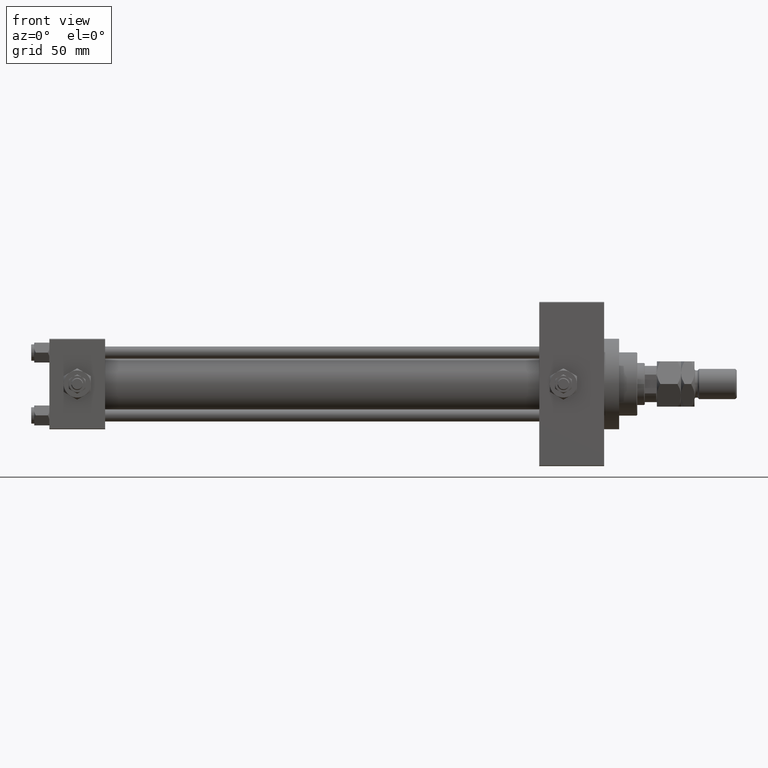
[diagram: clean part render]
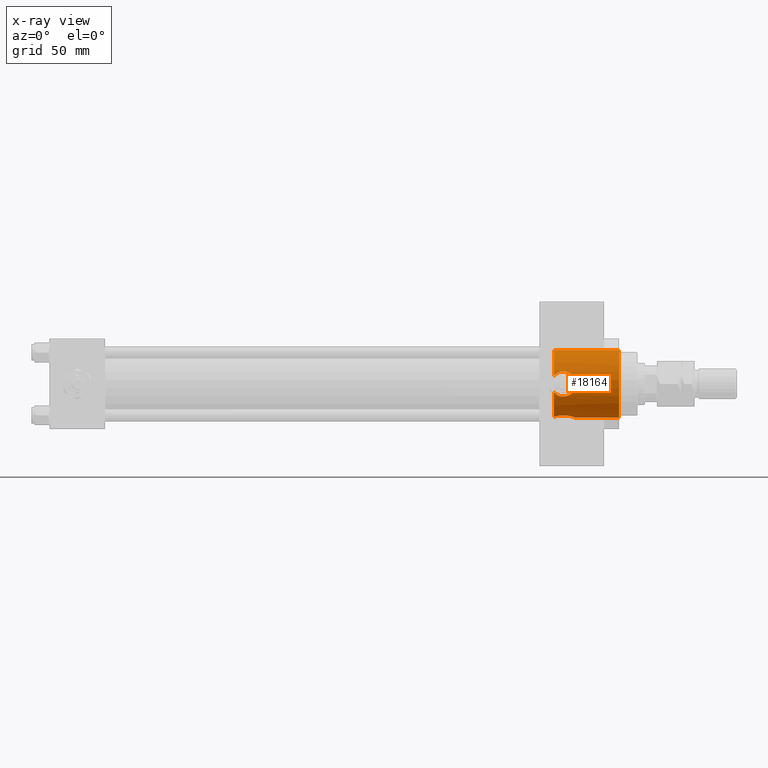
[diagram: x-ray — body ghosted, one internal face saturated and labeled with its STEP entity id]
A machine part, front view, then the same camera in x-ray: the body is ghosted and one INTERNAL B-rep face — a face not visible from any outside direction — is saturated and labeled: STEP entity #18164.
In plain terms, the highlighted cylindrical surface (edge-blend (fillet) strip) has radius 22.5 mm, axis along (1, 0, 0).
Its self-contained STEP definition (entity closure, byte-faithful):
#681 = CARTESIAN_POINT ( 'NONE',  ( 349.0725935047803432, -2.097577831626844080, -22.40566635581345167 ) ) ;
#924 = CARTESIAN_POINT ( 'NONE',  ( 348.8195974207912400, -2.901808889280268922, -22.31576175661178496 ) ) ;
#1320 = ORIENTED_EDGE ( 'NONE', *, *, #31880, .F. ) ;
#2013 = CARTESIAN_POINT ( 'NONE',  ( 341.5471095774288983, -20.90659301079499244, -8.316562903860836187 ) ) ;
#2521 = CARTESIAN_POINT ( 'NONE',  ( 334.7399999999999523, -21.81854028114621968, 5.495570943951130438 ) ) ;
#2958 = CARTESIAN_POINT ( 'NONE',  ( 348.8855645018619498, -22.33915006169611317, 2.698472660097865905 ) ) ;
#3207 = CARTESIAN_POINT ( 'NONE',  ( 349.2744378885959691, -22.47926508187073935, -1.105184406068002057 ) ) ;
#3460 = CARTESIAN_POINT ( 'NONE',  ( 348.4663613352664129, -22.19443338850294367, -3.703568790865940485 ) ) ;
#4526 = CARTESIAN_POINT ( 'NONE',  ( 338.1560306839753025, -7.840697625789160519, -21.09036237300174577 ) ) ;
#4705 = DIRECTION ( 'NONE',  ( 0.000000000000000000, 0.000000000000000000, -1.000000000000000000 ) ) ;
#4776 = ORIENTED_EDGE ( 'NONE', *, *, #39935, .T. ) ;
#5028 = CARTESIAN_POINT ( 'NONE',  ( 337.0116854358693672, -7.325101535721532997, -21.27547271216654678 ) ) ;
#5801 = AXIS2_PLACEMENT_3D ( 'NONE', #32002, #24525, #4705 ) ;
#5856 = CARTESIAN_POINT ( 'NONE',  ( 347.6131820133792303, -21.92059695852138645, 5.094123725193845154 ) ) ;
#6321 = CYLINDRICAL_SURFACE ( 'NONE', #19060, 22.50000000000000355 ) ;
#7004 = ORIENTED_EDGE ( 'NONE', *, *, #7801, .F. ) ;
#7064 = CARTESIAN_POINT ( 'NONE',  ( 347.2760300427460152, -21.81999627700183453, -5.504278278704846095 ) ) ;
#7318 = CARTESIAN_POINT ( 'NONE',  ( 341.2770915216182743, -20.90122245228731401, 8.330000000000024940 ) ) ;
#7407 = CARTESIAN_POINT ( 'NONE',  ( 337.2813383015108002, -21.22781254901980574, 7.459669642192426231 ) ) ;
#7455 = LINE ( 'NONE', #35253, #22378 ) ;
#7527 = CARTESIAN_POINT ( 'NONE',  ( 334.7399999999999523, 2.755455298081545172E-15, 22.50000000000000355 ) ) ;
#7801 = EDGE_CURVE ( 'NONE', #42358, #26843, #46937, .T. ) ;
#7956 = DIRECTION ( 'NONE',  ( 1.000000000000000000, -0.000000000000000000, -0.000000000000000000 ) ) ;
#8133 = CARTESIAN_POINT ( 'NONE',  ( 349.2979863424998257, -0.8432915997223064952, -22.48808859033163188 ) ) ;
#8432 = CARTESIAN_POINT ( 'NONE',  ( 334.7399999999999523, -21.81854028114622324, -5.495570943951128662 ) ) ;
#9011 = CARTESIAN_POINT ( 'NONE',  ( 349.3299999999999841, -1.030804544852296126E-23, -22.50000000000000355 ) ) ;
#9159 = CARTESIAN_POINT ( 'NONE',  ( 349.3300000000000978, -0.4228661663087368572, -22.50000000000001421 ) ) ;
#9733 = CARTESIAN_POINT ( 'NONE',  ( 348.4672601230096234, -22.19473539390111583, 3.701775444982247087 ) ) ;
#9947 = FACE_OUTER_BOUND ( 'NONE', #36939, .T. ) ;
#9985 = CARTESIAN_POINT ( 'NONE',  ( 349.3300812647951261, -22.50003008603270516, -0.5475920828583176192 ) ) ;
#10931 = CARTESIAN_POINT ( 'NONE',  ( 343.1693074062156370, -21.01188926694717551, 8.047222581461237922 ) ) ;
#11186 = CARTESIAN_POINT ( 'NONE',  ( 342.6405019173681126, -20.96042511169567391, 8.180472788441878862 ) ) ;
#11442 = CARTESIAN_POINT ( 'NONE',  ( 377.9999999999999432, 0.000000000000000000, 0.000000000000000000 ) ) ;
#11730 = CIRCLE ( 'NONE', #31445, 22.50000000000000355 ) ;
#12301 = CARTESIAN_POINT ( 'NONE',  ( 338.6423281438608797, -21.02576769369942866, -8.011595525461789435 ) ) ;
#12765 = CARTESIAN_POINT ( 'NONE',  ( 349.1699291769579645, -1.679278209817700374, -22.44115179447787511 ) ) ;
#13254 = CARTESIAN_POINT ( 'NONE',  ( 377.9999999999999432, 2.755455298081545172E-15, 22.50000000000000355 ) ) ;
#13611 = CARTESIAN_POINT ( 'NONE',  ( 348.7930968072332121, -22.30658703498861684, 2.954723655153332906 ) ) ;
#13860 = CARTESIAN_POINT ( 'NONE',  ( 343.6924408181926083, -21.07232387524589257, 7.887613602273576774 ) ) ;
#13895 = EDGE_CURVE ( 'NONE', #19128, #31891, #50781, .T. ) ;
#14270 = DIRECTION ( 'NONE',  ( 1.000000000000000000, 0.000000000000000000, 0.000000000000000000 ) ) ;
#14802 = CARTESIAN_POINT ( 'NONE',  ( 344.7100157079871678, -21.22206990084784906, 7.478228700289371922 ) ) ;
#14888 = CARTESIAN_POINT ( 'NONE',  ( 339.8116114218196344, -20.92703331906125896, 8.266041580867405258 ) ) ;
#15060 = CARTESIAN_POINT ( 'NONE',  ( 348.0690759461941184, -22.06383064093186164, -4.414719317479118388 ) ) ;
#15394 = CARTESIAN_POINT ( 'NONE',  ( 337.0214695962670248, -21.27506732941325396, 7.324357775039843865 ) ) ;
#15678 = CARTESIAN_POINT ( 'NONE',  ( 337.0164830714163031, -21.27597812299412183, -7.321745335051938142 ) ) ;
#15813 = AXIS2_PLACEMENT_3D ( 'NONE', #49520, #14270, #25079 ) ;
#15926 = CARTESIAN_POINT ( 'NONE',  ( 338.0838949812959982, -21.09704273054902046, -7.825085139990043182 ) ) ;
#15977 = B_SPLINE_CURVE_WITH_KNOTS ( 'NONE', 3,
 ( #31558, #9159, #8133, #12765, #681, #924, #47526, #20482, #32310, #43918, #39790, #48039, #24847, #20737, #16382, #40290, #36182, #47277, #16892, #28446, #44166, #24334, #24590, #40033, #4526, #23827, #5028, #20999, #36438, #20225, #35923, #39538 ),
 .UNSPECIFIED., .F., .F.,
 ( 4, 2, 2, 2, 2, 2, 2, 2, 2, 2, 2, 2, 2, 2, 2, 4 ),
 ( 0.02026158208243490286, 0.02152696880141145158, 0.02279235552038800378, 0.02405774223936455250, 0.02532312895834110122, 0.02658851567731764995, 0.02785390239629419867, 0.03038467583424730306, 0.03291544927220040051, 0.03354814263168863497, 0.03418083599117686944, 0.03544622271015333836, 0.03671160942912980729, 0.03797699614810627622, 0.03924238286708274515, 0.04050776958605921407 ),
 .UNSPECIFIED. ) ;
#16382 = CARTESIAN_POINT ( 'NONE',  ( 344.7487363894114765, -7.487015359358492717, -21.22021487626639669 ) ) ;
#16892 = CARTESIAN_POINT ( 'NONE',  ( 341.0645977083230491, -8.332469890991696104, -20.90023832775081658 ) ) ;
#17389 = B_SPLINE_CURVE_WITH_KNOTS ( 'NONE', 3,
 ( #8432, #23621, #24132, #43452, #35972, #15678, #43964, #15926, #12301, #47072, #47326, #28243, #47825, #35224 ),
 .UNSPECIFIED., .F., .F.,
 ( 4, 2, 2, 2, 2, 2, 4 ),
 ( 0.000000000000000000, 0.001781041944051151406, 0.002671562916076662166, 0.003562083888102173142, 0.005343125832153344280, 0.006233646804179008780, 0.007124167776204675014 ),
 .UNSPECIFIED. ) ;
#17476 = CARTESIAN_POINT ( 'NONE',  ( 343.7005757782754358, -21.06910324548278979, -7.898897868879319439 ) ) ;
#17727 = CARTESIAN_POINT ( 'NONE',  ( 346.5068656785020949, -21.61137517055394497, 6.273349121788506899 ) ) ;
#17873 = ORIENTED_EDGE ( 'NONE', *, *, #19864, .T. ) ;
#18164 = ADVANCED_FACE ( 'NONE', ( #9947 ), #6321, .F. ) ;
#18653 = CARTESIAN_POINT ( 'NONE',  ( 349.0457606325066990, -22.39619972498787703, 2.174768506008422975 ) ) ;
#18845 = EDGE_CURVE ( 'NONE', #47050, #41273, #33293, .T. ) ;
#19060 = AXIS2_PLACEMENT_3D ( 'NONE', #25885, #41589, #49331 ) ;
#19128 = VERTEX_POINT ( 'NONE', #31235 ) ;
#19169 = CARTESIAN_POINT ( 'NONE',  ( 349.0590295962804817, -22.40087039118136758, -2.177107464027083772 ) ) ;
#19254 = CARTESIAN_POINT ( 'NONE',  ( 340.9999999999999432, -20.90122245228732112, 8.330000000000026716 ) ) ;
#19864 = EDGE_CURVE ( 'NONE', #37578, #47050, #34887, .T. ) ;
#20225 = CARTESIAN_POINT ( 'NONE',  ( 335.3158746668532899, -6.103616970294087452, -21.65812902678067431 ) ) ;
#20482 = CARTESIAN_POINT ( 'NONE',  ( 348.2951098973458102, -4.042988316980909325, -22.13706359110741673 ) ) ;
#20737 = CARTESIAN_POINT ( 'NONE',  ( 345.4717217021022861, -7.077548616542929771, -21.36464718587222222 ) ) ;
#20999 = CARTESIAN_POINT ( 'NONE',  ( 336.2981393575763036, -6.888851288155037444, -21.42070446004187900 ) ) ;
#21570 = CIRCLE ( 'NONE', #15813, 22.50000000000000355 ) ;
#22378 = VECTOR ( 'NONE', #7956, 1000.000000000000000 ) ;
#22517 = CARTESIAN_POINT ( 'NONE',  ( 346.0823739737876963, -21.50581369923292030, 6.621894569807096786 ) ) ;
#22672 = CARTESIAN_POINT ( 'NONE',  ( 334.7399999999999523, -21.81854028114622324, -5.495570943951128662 ) ) ;
#22765 = CARTESIAN_POINT ( 'NONE',  ( 345.4162946174781723, -21.36157403235598196, -7.068107254197775191 ) ) ;
#23018 = CARTESIAN_POINT ( 'NONE',  ( 347.6186959168767316, -21.92229428948382264, -5.086500752054649688 ) ) ;
#23621 = CARTESIAN_POINT ( 'NONE',  ( 335.1302032349921092, -21.70658630899342256, -5.940051103694808710 ) ) ;
#23827 = CARTESIAN_POINT ( 'NONE',  ( 337.3830852825356033, -7.515492575748689674, -21.20842510955139559 ) ) ;
#24132 = CARTESIAN_POINT ( 'NONE',  ( 335.5599114470475683, -21.59276950757631752, -6.335268510715420298 ) ) ;
#24334 = CARTESIAN_POINT ( 'NONE',  ( 339.7966742200955537, -8.253438808842137320, -20.93161653585324800 ) ) ;
#24525 = DIRECTION ( 'NONE',  ( 1.000000000000000000, 0.000000000000000000, 0.000000000000000000 ) ) ;
#24590 = CARTESIAN_POINT ( 'NONE',  ( 339.3814412075935820, -8.182171164303351674, -20.95982457214782002 ) ) ;
#24847 = CARTESIAN_POINT ( 'NONE',  ( 346.4597915280917277, -6.305104980880392951, -21.60018777995133021 ) ) ;
#25079 = DIRECTION ( 'NONE',  ( 0.000000000000000000, 0.000000000000000000, -1.000000000000000000 ) ) ;
#25424 = CARTESIAN_POINT ( 'NONE',  ( 348.2094365790031247, -22.10932566242728825, 4.181762714824294846 ) ) ;
#25454 = VECTOR ( 'NONE', #49759, 1000.000000000000000 ) ;
#25673 = CARTESIAN_POINT ( 'NONE',  ( 342.3698902534409285, -20.94433763564106243, -8.221198477384719538 ) ) ;
#25885 = CARTESIAN_POINT ( 'NONE',  ( 334.7399999999999523, 0.000000000000000000, 0.000000000000000000 ) ) ;
#26843 = VERTEX_POINT ( 'NONE', #45458 ) ;
#26935 = CARTESIAN_POINT ( 'NONE',  ( 340.9999999999999432, -20.90122245228732467, -8.330000000000026716 ) ) ;
#26969 = CARTESIAN_POINT ( 'NONE',  ( 338.0904099977523174, -21.10090803564296635, 7.811000428585679778 ) ) ;
#27138 = CARTESIAN_POINT ( 'NONE',  ( 342.0945140872406682, -20.92807357394549683, -8.262359610693556178 ) ) ;
#27477 = CARTESIAN_POINT ( 'NONE',  ( 338.9433953409138667, -21.00018004101063340, 8.077560274214643954 ) ) ;
#28243 = CARTESIAN_POINT ( 'NONE',  ( 340.4069016165259995, -20.90753896790106481, -8.314203881045560962 ) ) ;
#28446 = CARTESIAN_POINT ( 'NONE',  ( 340.6388607599009219, -8.324890737869443669, -20.90325837862611635 ) ) ;
#29284 = CARTESIAN_POINT ( 'NONE',  ( 349.3299185521605068, -22.49996984620014828, 0.5500617071476535669 ) ) ;
#29541 = CARTESIAN_POINT ( 'NONE',  ( 342.1003494092674941, -20.92838892255955940, 8.261561365096227405 ) ) ;
#30477 = CARTESIAN_POINT ( 'NONE',  ( 343.1797018052744193, -21.00767761359997365, -8.058598816431034706 ) ) ;
#30562 = CARTESIAN_POINT ( 'NONE',  ( 338.6551550182246615, -21.03047559937811428, 7.998696374284316235 ) ) ;
#30736 = CARTESIAN_POINT ( 'NONE',  ( 348.5849097978502300, -22.23470781577740496, -3.454383896492974504 ) ) ;
#30987 = CARTESIAN_POINT ( 'NONE',  ( 341.5543731579530231, -20.90679372045596907, 8.316058887085103990 ) ) ;
#31077 = CARTESIAN_POINT ( 'NONE',  ( 336.5161894936350677, -21.37532087138411541, 7.026404794290225908 ) ) ;
#31235 = CARTESIAN_POINT ( 'NONE',  ( 334.7399999999999523, 2.755455298081545172E-15, 22.50000000000000355 ) ) ;
#31241 = DIRECTION ( 'NONE',  ( 0.000000000000000000, 0.000000000000000000, -1.000000000000000000 ) ) ;
#31332 = CARTESIAN_POINT ( 'NONE',  ( 335.1294213925111762, -21.70681062894639979, 5.939160507616672469 ) ) ;
#31445 = AXIS2_PLACEMENT_3D ( 'NONE', #11442, #47217, #31241 ) ;
#31558 = CARTESIAN_POINT ( 'NONE',  ( 349.3299999999999841, -1.030804544852296126E-23, -22.50000000000000355 ) ) ;
#31880 = EDGE_CURVE ( 'NONE', #19128, #41273, #21570, .T. ) ;
#31891 = VERTEX_POINT ( 'NONE', #13254 ) ;
#32002 = CARTESIAN_POINT ( 'NONE',  ( 334.7399999999999523, 0.000000000000000000, 0.000000000000000000 ) ) ;
#32310 = CARTESIAN_POINT ( 'NONE',  ( 348.0799258618781096, -4.408873422199400594, -22.06660649451127654 ) ) ;
#32572 = ORIENTED_EDGE ( 'NONE', *, *, #13895, .T. ) ;
#33150 = CARTESIAN_POINT ( 'NONE',  ( 377.9999999999999432, 0.000000000000000000, -22.50000000000000355 ) ) ;
#33154 = CARTESIAN_POINT ( 'NONE',  ( 348.9001442294269850, -22.34355564568057773, -2.697317211183199337 ) ) ;
#33293 = B_SPLINE_CURVE_WITH_KNOTS ( 'NONE', 3,
 ( #19254, #38809, #14888, #27477, #30562, #26969, #42667, #7407, #15394, #31077, #46798, #35205, #31332, #43434 ),
 .UNSPECIFIED., .F., .F.,
 ( 4, 2, 2, 2, 2, 2, 4 ),
 ( 0.03340145977438384317, 0.03517803722730254018, 0.03606632595376196848, 0.03695461468022139678, 0.03784290340668082508, 0.03873119213314025339, 0.04050776958605924183 ),
 .UNSPECIFIED. ) ;
#33307 = EDGE_CURVE ( 'NONE', #31891, #38236, #11730, .T. ) ;
#33410 = CARTESIAN_POINT ( 'NONE',  ( 345.1856674176399338, -21.31171765456205591, 7.222201961450741337 ) ) ;
#34360 = CARTESIAN_POINT ( 'NONE',  ( 347.2706970584280270, -21.81851527395822288, 5.509885407731403895 ) ) ;
#34887 = B_SPLINE_CURVE_WITH_KNOTS ( 'NONE', 3,
 ( #48868, #38462, #2013, #27138, #25673, #30477, #17476, #42578, #46203, #50317, #22765, #50061, #45261, #7064, #23018, #15060, #38980, #3460, #30736, #33154, #19169, #3207, #9985, #29284, #45003, #46464, #18653, #2958, #13611, #37270, #9733, #25424, #41129, #5856, #34360, #17727, #22517, #33410, #14802, #49113, #13860, #10931, #11186, #29541, #30987, #7318, #42069 ),
 .UNSPECIFIED., .F., .F.,
 ( 4, 2, 2, 2, 2, 2, 2, 2, 2, 2, 2, 2, 2, 2, 2, 2, 2, 2, 2, 2, 2, 1, 2, 4 ),
 ( 0.007124167776204675014, 0.007945333151147714740, 0.008766498526090755333, 0.01040882927597699611, 0.01122999465092011998, 0.01205116002586324037, 0.01369349077574948809, 0.01533582152563573234, 0.01615698690057881109, 0.01697815227552188985, 0.01862048302540811329, 0.02026281377529433672, 0.02190514452518055669, 0.02272630990012367014, 0.02354747527506678012, 0.02436864065000989010, 0.02518980602495300009, 0.02683213677483923046, 0.02847446752472545736, 0.03011679827461168427, 0.03093796364955472486, 0.03175912902449776198, 0.03258029439944080258, 0.03340145977438384317 ),
 .UNSPECIFIED. ) ;
#34963 = ORIENTED_EDGE ( 'NONE', *, *, #33307, .T. ) ;
#35205 = CARTESIAN_POINT ( 'NONE',  ( 335.5602391363178185, -21.59259860989614666, 6.336013317517867449 ) ) ;
#35224 = CARTESIAN_POINT ( 'NONE',  ( 340.9999999999999432, -20.90122245228732467, -8.330000000000026716 ) ) ;
#35253 = CARTESIAN_POINT ( 'NONE',  ( 334.7399999999999523, 0.000000000000000000, -22.50000000000000355 ) ) ;
#35923 = CARTESIAN_POINT ( 'NONE',  ( 335.0173696454153855, -5.811522461638537251, -21.73895961452387482 ) ) ;
#35972 = CARTESIAN_POINT ( 'NONE',  ( 336.5072799748207899, -21.37716939153678197, -7.020813959009437610 ) ) ;
#36013 = VERTEX_POINT ( 'NONE', #9011 ) ;
#36182 = CARTESIAN_POINT ( 'NONE',  ( 342.3403738839044763, -8.265299052519083034, -20.92696222447260013 ) ) ;
#36311 = EDGE_CURVE ( 'NONE', #42358, #37578, #17389, .T. ) ;
#36438 = CARTESIAN_POINT ( 'NONE',  ( 335.9550632640746812, -6.641689111475748142, -21.49922460944222280 ) ) ;
#36939 = EDGE_LOOP ( 'NONE', ( #1320, #32572, #34963, #38466, #4776, #7004, #38571, #17873, #42839 ) ) ;
#37270 = CARTESIAN_POINT ( 'NONE',  ( 348.5839448562603025, -22.23438073986798003, 3.456375289581919752 ) ) ;
#37578 = VERTEX_POINT ( 'NONE', #26935 ) ;
#38236 = VERTEX_POINT ( 'NONE', #33150 ) ;
#38462 = CARTESIAN_POINT ( 'NONE',  ( 341.2735061075310909, -20.90122245228731757, -8.330000000000028493 ) ) ;
#38466 = ORIENTED_EDGE ( 'NONE', *, *, #47347, .F. ) ;
#38571 = ORIENTED_EDGE ( 'NONE', *, *, #36311, .T. ) ;
#38809 = CARTESIAN_POINT ( 'NONE',  ( 340.4005171616785788, -20.90122245228732822, 8.330000000000030269 ) ) ;
#38980 = CARTESIAN_POINT ( 'NONE',  ( 348.2086838033528693, -22.10908057845582775, -4.183043294148133917 ) ) ;
#39538 = CARTESIAN_POINT ( 'NONE',  ( 334.7399999999999523, -5.495570943951124221, -21.81854028114622324 ) ) ;
#39790 = CARTESIAN_POINT ( 'NONE',  ( 347.3413009043435977, -5.417501232309242631, -21.84028767977483909 ) ) ;
#39935 = EDGE_CURVE ( 'NONE', #36013, #26843, #15977, .T. ) ;
#40033 = CARTESIAN_POINT ( 'NONE',  ( 338.5613052431536403, -7.976241308370991767, -21.03905286955200538 ) ) ;
#40290 = CARTESIAN_POINT ( 'NONE',  ( 343.1626272159215318, -8.088971939222155072, -20.99812971082577562 ) ) ;
#40686 = CARTESIAN_POINT ( 'NONE',  ( 340.9999999999999432, -20.90122245228732112, 8.330000000000026716 ) ) ;
#41129 = CARTESIAN_POINT ( 'NONE',  ( 348.0675627765496074, -22.06333762759911465, 4.417272871008655066 ) ) ;
#41273 = VERTEX_POINT ( 'NONE', #2521 ) ;
#41589 = DIRECTION ( 'NONE',  ( 1.000000000000000000, -0.000000000000000000, -0.000000000000000000 ) ) ;
#42069 = CARTESIAN_POINT ( 'NONE',  ( 340.9999999999999432, -20.90122245228732112, 8.330000000000026716 ) ) ;
#42358 = VERTEX_POINT ( 'NONE', #22672 ) ;
#42578 = CARTESIAN_POINT ( 'NONE',  ( 344.4549169580585612, -21.18338444856563640, -7.584632363023140478 ) ) ;
#42667 = CARTESIAN_POINT ( 'NONE',  ( 337.8158094925857995, -21.14073437645954456, 7.702989472338082955 ) ) ;
#42839 = ORIENTED_EDGE ( 'NONE', *, *, #18845, .T. ) ;
#43434 = CARTESIAN_POINT ( 'NONE',  ( 334.7399999999999523, -21.81854028114621968, 5.495570943951130438 ) ) ;
#43452 = CARTESIAN_POINT ( 'NONE',  ( 336.2630478035204078, -21.43006822195328454, -6.858243691352290838 ) ) ;
#43918 = CARTESIAN_POINT ( 'NONE',  ( 347.6031555897930616, -5.095277354536547065, -21.91828998158685593 ) ) ;
#43964 = CARTESIAN_POINT ( 'NONE',  ( 337.2800545255193470, -21.22802876403585515, -7.459060741738358757 ) ) ;
#44166 = CARTESIAN_POINT ( 'NONE',  ( 340.4273342078094515, -8.312974207010759287, -20.90801079915065586 ) ) ;
#45003 = CARTESIAN_POINT ( 'NONE',  ( 349.2761281519645991, -22.47988508193238388, 1.094792065016551463 ) ) ;
#45261 = CARTESIAN_POINT ( 'NONE',  ( 346.5057538670176882, -21.61103907902401744, -6.274735597831412548 ) ) ;
#45458 = CARTESIAN_POINT ( 'NONE',  ( 334.7399999999999523, -5.495570943951124221, -21.81854028114622324 ) ) ;
#46203 = CARTESIAN_POINT ( 'NONE',  ( 344.7029940750481956, -21.22539488743753111, -7.466680409794089535 ) ) ;
#46464 = CARTESIAN_POINT ( 'NONE',  ( 349.1137670994564246, -22.42078891501158111, 1.905695455502139035 ) ) ;
#46798 = CARTESIAN_POINT ( 'NONE',  ( 336.2697604933276807, -21.42856317882727168, 6.862982220796677524 ) ) ;
#46937 = CIRCLE ( 'NONE', #5801, 22.50000000000000355 ) ;
#47050 = VERTEX_POINT ( 'NONE', #40686 ) ;
#47072 = CARTESIAN_POINT ( 'NONE',  ( 339.5159917530594385, -20.95182994654722464, -8.202162177390814435 ) ) ;
#47217 = DIRECTION ( 'NONE',  ( 1.000000000000000000, 0.000000000000000000, 0.000000000000000000 ) ) ;
#47277 = CARTESIAN_POINT ( 'NONE',  ( 341.2794540716095639, -8.328024065339581838, -20.90201419577499564 ) ) ;
#47326 = CARTESIAN_POINT ( 'NONE',  ( 339.8141494303989703, -20.93274137745090258, -8.250546060391977576 ) ) ;
#47347 = EDGE_CURVE ( 'NONE', #36013, #38236, #7455, .T. ) ;
#47526 = CARTESIAN_POINT ( 'NONE',  ( 348.6639140372365659, -3.290714903397398139, -22.26132373405803477 ) ) ;
#47825 = CARTESIAN_POINT ( 'NONE',  ( 340.7033935767803428, -20.90122245228731401, -8.330000000000023164 ) ) ;
#48039 = CARTESIAN_POINT ( 'NONE',  ( 346.7709310324998455, -6.021442665975518693, -21.68155238348413505 ) ) ;
#48868 = CARTESIAN_POINT ( 'NONE',  ( 340.9999999999999432, -20.90122245228732467, -8.330000000000026716 ) ) ;
#49113 = CARTESIAN_POINT ( 'NONE',  ( 343.9526680260203761, -21.10727557153275313, 7.793937181550339766 ) ) ;
#49331 = DIRECTION ( 'NONE',  ( 0.000000000000000000, 0.000000000000000000, -1.000000000000000000 ) ) ;
#49520 = CARTESIAN_POINT ( 'NONE',  ( 334.7399999999999523, 0.000000000000000000, 0.000000000000000000 ) ) ;
#49759 = DIRECTION ( 'NONE',  ( 1.000000000000000000, -0.000000000000000000, -0.000000000000000000 ) ) ;
#50061 = CARTESIAN_POINT ( 'NONE',  ( 346.0889559316784130, -21.50736897996589292, -6.616873940636519791 ) ) ;
#50317 = CARTESIAN_POINT ( 'NONE',  ( 345.1841016531935225, -21.31459428776614828, -7.208104800680188440 ) ) ;
#50781 = LINE ( 'NONE', #7527, #25454 ) ;